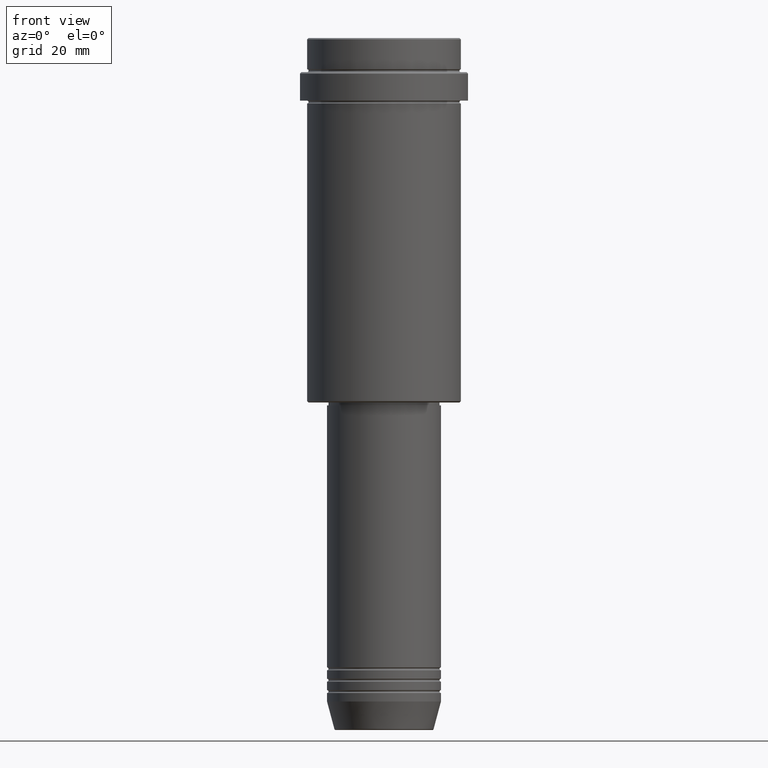
[diagram: clean part render]
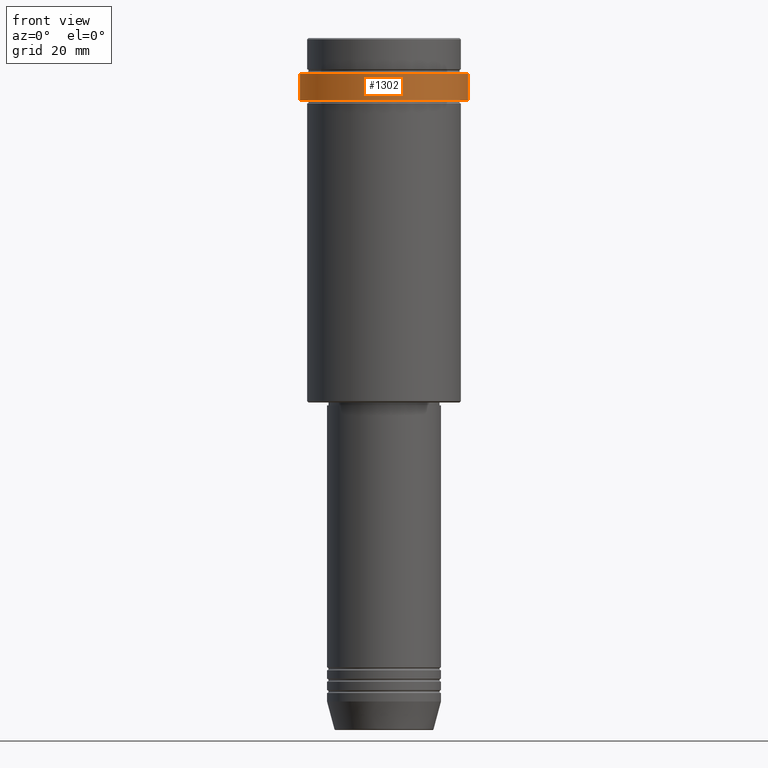
[diagram: same view with one face highlighted and labeled with its STEP entity id]
A machine part, front view. The second image highlights one B-rep face of the part: STEP entity #1302.
In plain terms, the highlighted cylindrical surface (partial cylindrical patch) has radius 29.5 mm, axis along (-0, -0, 1).
Its self-contained STEP definition (entity closure, byte-faithful):
#48 = FACE_OUTER_BOUND ( 'NONE', #451, .T. ) ;
#64 = AXIS2_PLACEMENT_3D ( 'NONE', #414, #1318, #111 ) ;
#111 = DIRECTION ( 'NONE',  ( 1.000000000000000000, 0.000000000000000000, 0.000000000000000000 ) ) ;
#139 = DIRECTION ( 'NONE',  ( -0.000000000000000000, -0.000000000000000000, 1.000000000000000000 ) ) ;
#169 = CYLINDRICAL_SURFACE ( 'NONE', #1388, 29.50000000000000000 ) ;
#184 = CARTESIAN_POINT ( 'NONE',  ( 0.000000000000000000, 0.000000000000000000, 0.000000000000000000 ) ) ;
#281 = CARTESIAN_POINT ( 'NONE',  ( -29.50000000000000000, 3.612708057484691604E-15, -12.49999999999994849 ) ) ;
#409 = CARTESIAN_POINT ( 'NONE',  ( 0.000000000000000000, 0.000000000000000000, -22.00000000000000711 ) ) ;
#414 = CARTESIAN_POINT ( 'NONE',  ( 0.000000000000000000, 0.000000000000000000, -12.49999999999994849 ) ) ;
#451 = EDGE_LOOP ( 'NONE', ( #706, #712, #807, #637 ) ) ;
#475 = DIRECTION ( 'NONE',  ( 1.000000000000000000, 0.000000000000000000, 0.000000000000000000 ) ) ;
#493 = DIRECTION ( 'NONE',  ( -0.000000000000000000, -0.000000000000000000, 1.000000000000000000 ) ) ;
#637 = ORIENTED_EDGE ( 'NONE', *, *, #1034, .T. ) ;
#658 = CARTESIAN_POINT ( 'NONE',  ( 29.50000000000000000, 0.000000000000000000, -12.49999999999994849 ) ) ;
#673 = LINE ( 'NONE', #1017, #1362 ) ;
#679 = AXIS2_PLACEMENT_3D ( 'NONE', #409, #493, #1160 ) ;
#688 = VERTEX_POINT ( 'NONE', #281 ) ;
#693 = EDGE_CURVE ( 'NONE', #1330, #688, #673, .T. ) ;
#702 = CARTESIAN_POINT ( 'NONE',  ( -29.49999999999999645, 3.612708057484690815E-15, -22.00000000000000711 ) ) ;
#706 = ORIENTED_EDGE ( 'NONE', *, *, #693, .F. ) ;
#712 = ORIENTED_EDGE ( 'NONE', *, *, #868, .T. ) ;
#726 = DIRECTION ( 'NONE',  ( -0.000000000000000000, -0.000000000000000000, 1.000000000000000000 ) ) ;
#728 = CIRCLE ( 'NONE', #679, 29.49999999999999645 ) ;
#807 = ORIENTED_EDGE ( 'NONE', *, *, #955, .T. ) ;
#868 = EDGE_CURVE ( 'NONE', #1330, #971, #728, .T. ) ;
#939 = LINE ( 'NONE', #1055, #1336 ) ;
#955 = EDGE_CURVE ( 'NONE', #971, #1161, #939, .T. ) ;
#963 = CIRCLE ( 'NONE', #64, 29.50000000000000000 ) ;
#971 = VERTEX_POINT ( 'NONE', #1398 ) ;
#1017 = CARTESIAN_POINT ( 'NONE',  ( -29.50000000000000000, 3.612708057484691604E-15, 0.000000000000000000 ) ) ;
#1034 = EDGE_CURVE ( 'NONE', #1161, #688, #963, .T. ) ;
#1055 = CARTESIAN_POINT ( 'NONE',  ( 29.50000000000000000, 0.000000000000000000, 0.000000000000000000 ) ) ;
#1160 = DIRECTION ( 'NONE',  ( 1.000000000000000000, 0.000000000000000000, 0.000000000000000000 ) ) ;
#1161 = VERTEX_POINT ( 'NONE', #658 ) ;
#1302 = ADVANCED_FACE ( 'NONE', ( #48 ), #169, .T. ) ;
#1318 = DIRECTION ( 'NONE',  ( 0.000000000000000000, 0.000000000000000000, -1.000000000000000000 ) ) ;
#1330 = VERTEX_POINT ( 'NONE', #702 ) ;
#1336 = VECTOR ( 'NONE', #726, 1000.000000000000000 ) ;
#1362 = VECTOR ( 'NONE', #139, 1000.000000000000000 ) ;
#1373 = DIRECTION ( 'NONE',  ( -0.000000000000000000, -0.000000000000000000, 1.000000000000000000 ) ) ;
#1388 = AXIS2_PLACEMENT_3D ( 'NONE', #184, #1373, #475 ) ;
#1398 = CARTESIAN_POINT ( 'NONE',  ( 29.49999999999999645, 0.000000000000000000, -22.00000000000000711 ) ) ;